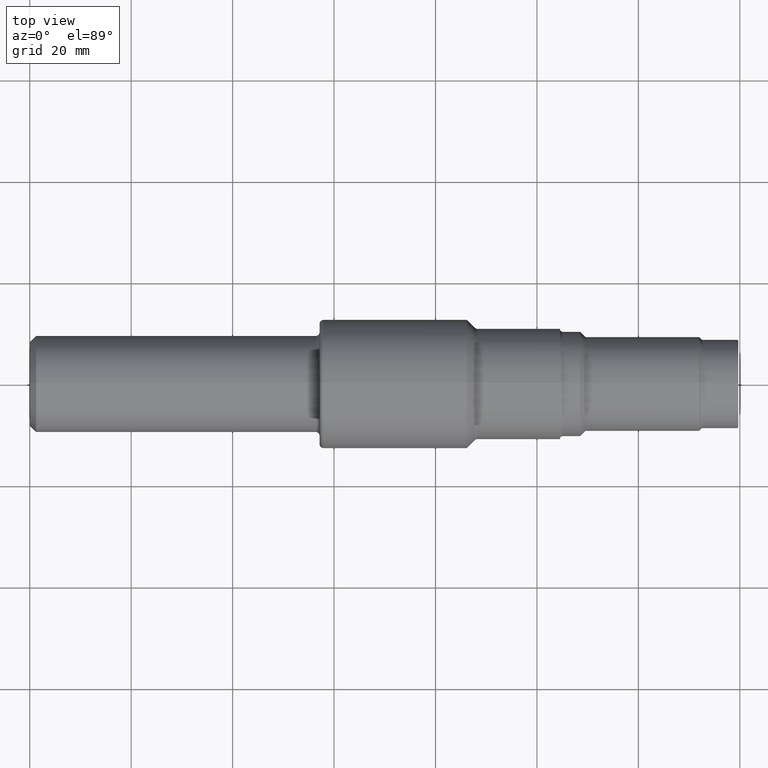
[diagram: clean part render]
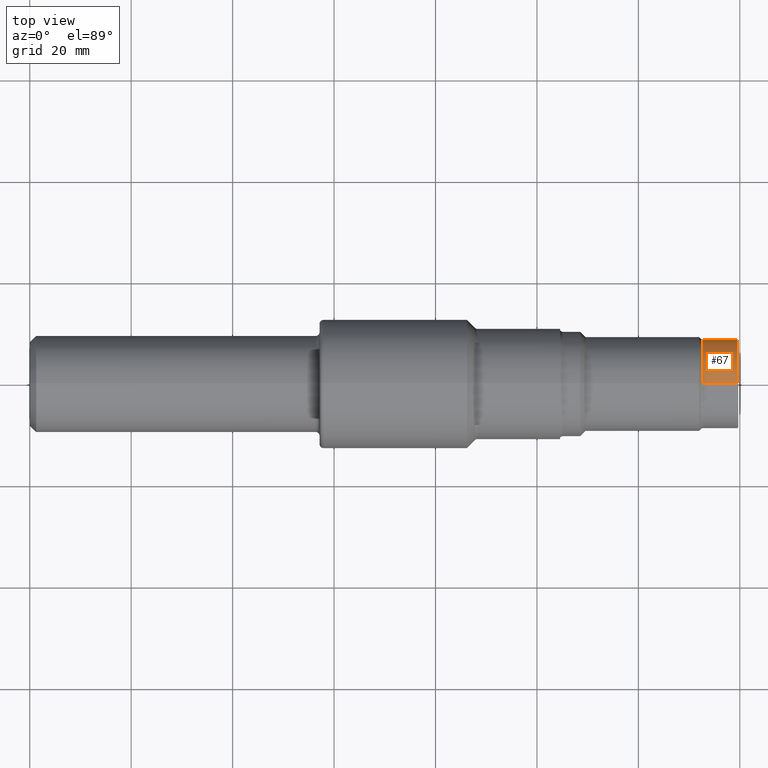
[diagram: same view with one face highlighted and labeled with its STEP entity id]
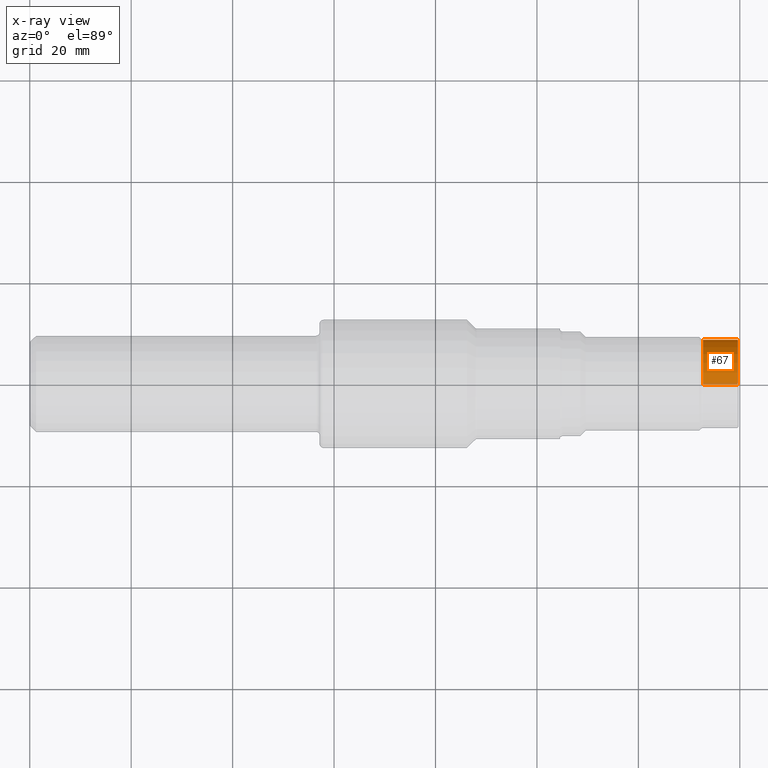
[diagram: x-ray of the same camera — body ghosted, the highlighted face saturated]
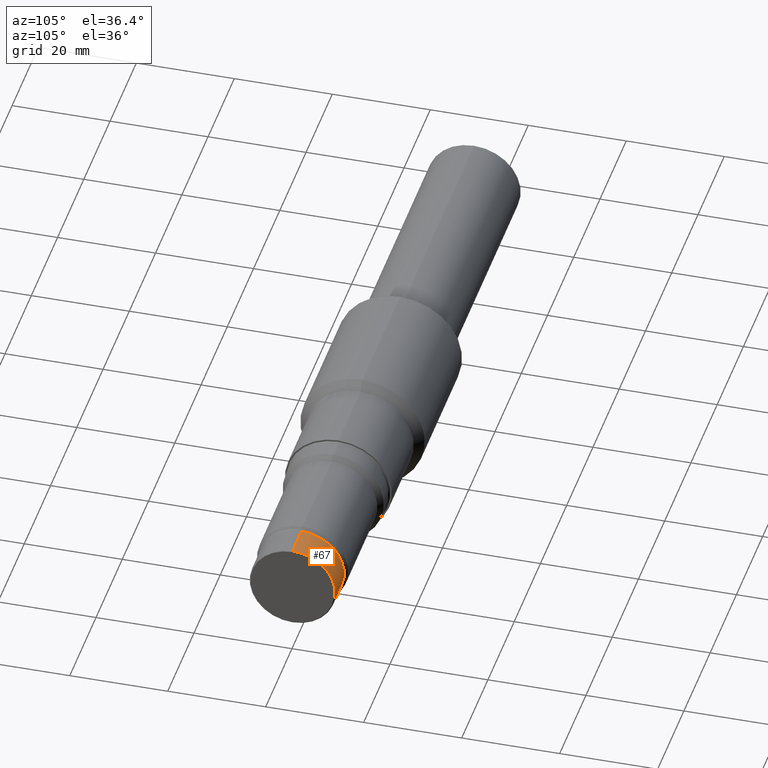
[diagram: same view with one face highlighted and labeled with its STEP entity id]
A machine part, top view. The second image highlights one B-rep face of the part: STEP entity #67.
The next image is the same camera in x-ray: the body ghosted, the highlighted face saturated — about 3% of this face is hidden behind the body in this view.
A second angle (auxiliary view) of the same face is appended — the face is thin or edge-on in the first view.
In plain terms, the highlighted cylindrical surface (partial cylindrical patch) has radius 8.7351 mm, axis along (-1, -0, -0).
Its self-contained STEP definition (entity closure, byte-faithful):
#42 = ORIENTED_EDGE ( 'NONE', *, *, #315, .F. ) ;
#50 = VERTEX_POINT ( 'NONE', #754 ) ;
#63 = CARTESIAN_POINT ( 'NONE',  ( 5.493999999999999773, 0.000000000000000000, 0.3438999999999999835 ) ) ;
#64 = CARTESIAN_POINT ( 'NONE',  ( 5.226712698372208976, 0.000000000000000000, 0.000000000000000000 ) ) ;
#67 = ADVANCED_FACE ( 'NONE', ( #745 ), #188, .T. ) ;
#90 = VECTOR ( 'NONE', #1042, 39.37007874015748143 ) ;
#96 = DIRECTION ( 'NONE',  ( -1.000000000000000000, -0.000000000000000000, -0.000000000000000000 ) ) ;
#188 = CYLINDRICAL_SURFACE ( 'NONE', #309, 0.3438999999999997059 ) ;
#246 = ORIENTED_EDGE ( 'NONE', *, *, #1010, .T. ) ;
#309 = AXIS2_PLACEMENT_3D ( 'NONE', #738, #595, #899 ) ;
#315 = EDGE_CURVE ( 'NONE', #729, #50, #343, .T. ) ;
#343 = CIRCLE ( 'NONE', #705, 0.3438999999999994839 ) ;
#378 = ORIENTED_EDGE ( 'NONE', *, *, #980, .T. ) ;
#414 = EDGE_CURVE ( 'NONE', #687, #729, #727, .T. ) ;
#417 = LINE ( 'NONE', #924, #951 ) ;
#466 = EDGE_LOOP ( 'NONE', ( #246, #378, #42, #665 ) ) ;
#545 = CARTESIAN_POINT ( 'NONE',  ( 5.493999999999999773, 4.211560342267746736E-17, -0.3438999999999999835 ) ) ;
#551 = CIRCLE ( 'NONE', #587, 0.3438999999999999835 ) ;
#585 = DIRECTION ( 'NONE',  ( 0.000000000000000000, 0.000000000000000000, 1.000000000000000000 ) ) ;
#587 = AXIS2_PLACEMENT_3D ( 'NONE', #756, #96, #585 ) ;
#595 = DIRECTION ( 'NONE',  ( -1.000000000000000000, -0.000000000000000000, -0.000000000000000000 ) ) ;
#604 = VERTEX_POINT ( 'NONE', #545 ) ;
#632 = DIRECTION ( 'NONE',  ( 0.000000000000000000, 0.000000000000000000, 1.000000000000000000 ) ) ;
#655 = CARTESIAN_POINT ( 'NONE',  ( 5.226712698372208976, 0.000000000000000000, 0.3438999999999994839 ) ) ;
#665 = ORIENTED_EDGE ( 'NONE', *, *, #414, .F. ) ;
#687 = VERTEX_POINT ( 'NONE', #63 ) ;
#705 = AXIS2_PLACEMENT_3D ( 'NONE', #64, #712, #632 ) ;
#712 = DIRECTION ( 'NONE',  ( -1.000000000000000000, -0.000000000000000000, -0.000000000000000000 ) ) ;
#719 = CARTESIAN_POINT ( 'NONE',  ( 0.000000000000000000, 0.000000000000000000, 0.3438999999999997059 ) ) ;
#727 = LINE ( 'NONE', #719, #90 ) ;
#729 = VERTEX_POINT ( 'NONE', #655 ) ;
#738 = CARTESIAN_POINT ( 'NONE',  ( 0.000000000000000000, 0.000000000000000000, 0.000000000000000000 ) ) ;
#745 = FACE_OUTER_BOUND ( 'NONE', #466, .T. ) ;
#754 = CARTESIAN_POINT ( 'NONE',  ( 5.226712698372208976, 4.211560342267743038E-17, -0.3438999999999994839 ) ) ;
#756 = CARTESIAN_POINT ( 'NONE',  ( 5.493999999999999773, 0.000000000000000000, 0.000000000000000000 ) ) ;
#821 = DIRECTION ( 'NONE',  ( -1.000000000000000000, -0.000000000000000000, -0.000000000000000000 ) ) ;
#899 = DIRECTION ( 'NONE',  ( 0.000000000000000000, 0.000000000000000000, 1.000000000000000000 ) ) ;
#924 = CARTESIAN_POINT ( 'NONE',  ( 0.000000000000000000, 4.211560342267743654E-17, -0.3438999999999997059 ) ) ;
#951 = VECTOR ( 'NONE', #821, 39.37007874015748143 ) ;
#980 = EDGE_CURVE ( 'NONE', #604, #50, #417, .T. ) ;
#1010 = EDGE_CURVE ( 'NONE', #687, #604, #551, .T. ) ;
#1042 = DIRECTION ( 'NONE',  ( -1.000000000000000000, -0.000000000000000000, -0.000000000000000000 ) ) ;